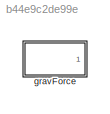
MODEL slx_b44e9c2de99e
KIND library
CONFIG AbsTol = auto
CONFIG EnableMultiTasking = off
CONFIG FixedStep = auto
CONFIG MaxStep = auto
CONFIG MinStep = auto
CONFIG RelTol = 1e-3
CONFIG SampleTimeConstraint = Unconstrained
CONFIG Solver = VariableStepAuto
CONFIG SolverName = VariableStepAuto
CONFIG StartTime = 0.0
CONFIG StopTime = 10.0
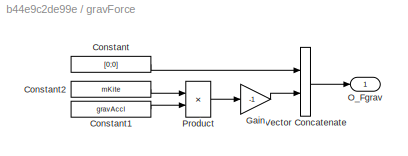
BLOCK [SubSystem] gravForce
  Ports = [0, 1]
  RequestExecContextInheritance = off
BLOCK [Constant] gravForce/Constant
  Value = [0;0]
BLOCK [Constant] gravForce/Constant1
  Value = gravAccl
BLOCK [Constant] gravForce/Constant2
  Value = mKite
BLOCK [Gain] gravForce/Gain
  Gain = -1
BLOCK [Outport] gravForce/O_Fgrav
  PortDimensions = [3,1]
BLOCK [Product] gravForce/Product
  Ports = [2, 1]
BLOCK [Concatenate] gravForce/Vector Concatenate
  Ports = [2, 1]
LINE gravForce/Constant1:1 -> gravForce/Product:2
LINE gravForce/Constant2:1 -> gravForce/Product:1
LINE gravForce/Constant:1 -> gravForce/Vector Concatenate:1
LINE gravForce/Gain:1 -> gravForce/Vector Concatenate:2
LINE gravForce/Product:1 -> gravForce/Gain:1
LINE gravForce/Vector Concatenate:1 -> gravForce/O_Fgrav:1
